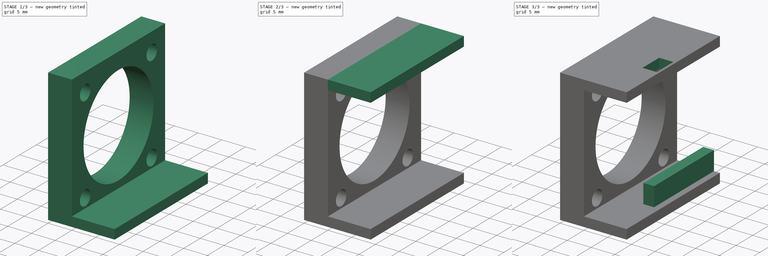
[diagram: build sequence overview — one tinted view per stage of 3, left to right]
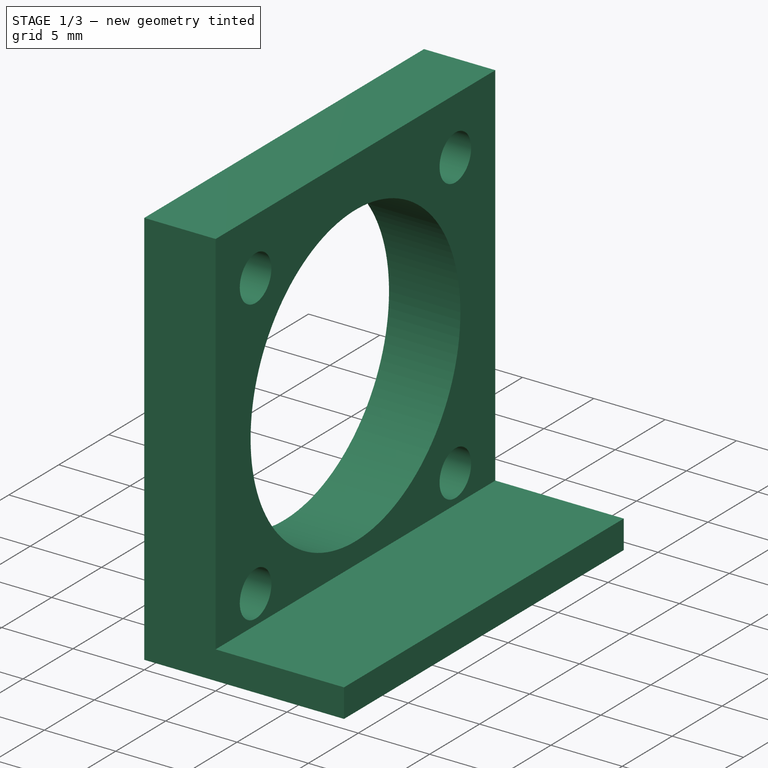
[diagram: stage 1 of 3 — iso view after this stage's code; geometry added in this stage tinted green]
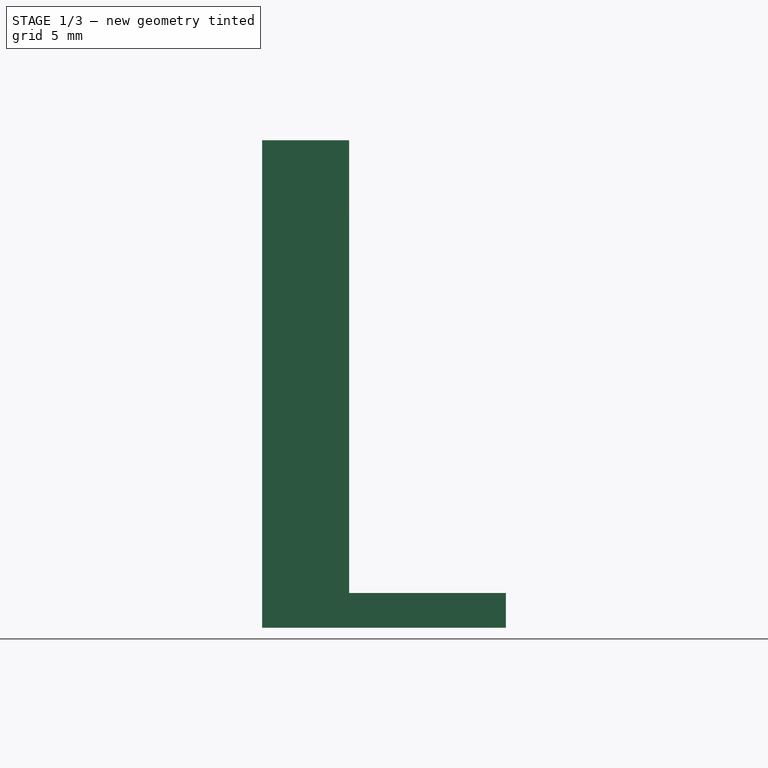
[diagram: stage 1 of 3 — front view after this stage's code; geometry added in this stage tinted green]
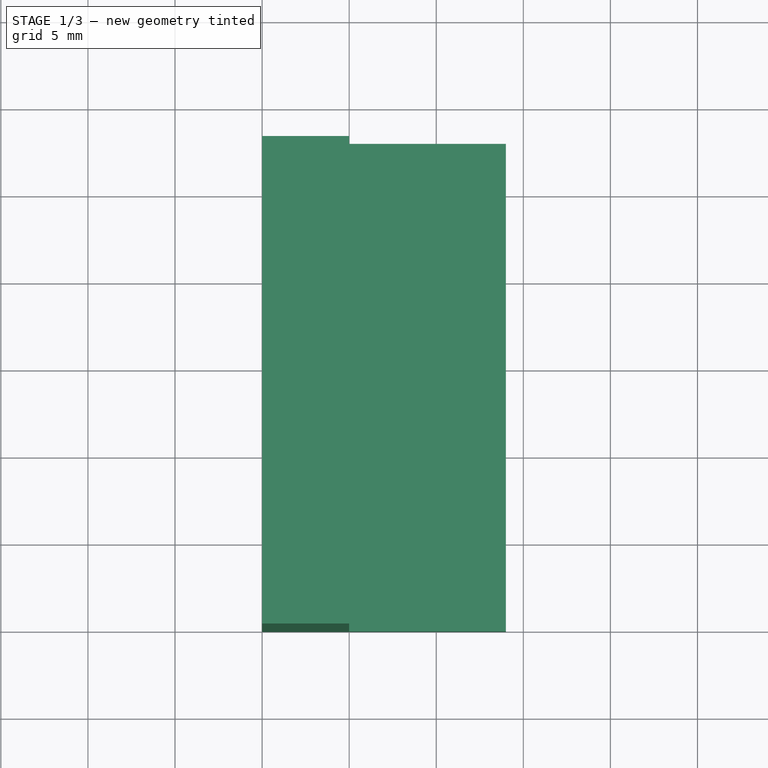
[diagram: stage 1 of 3 — top view after this stage's code; geometry added in this stage tinted green]
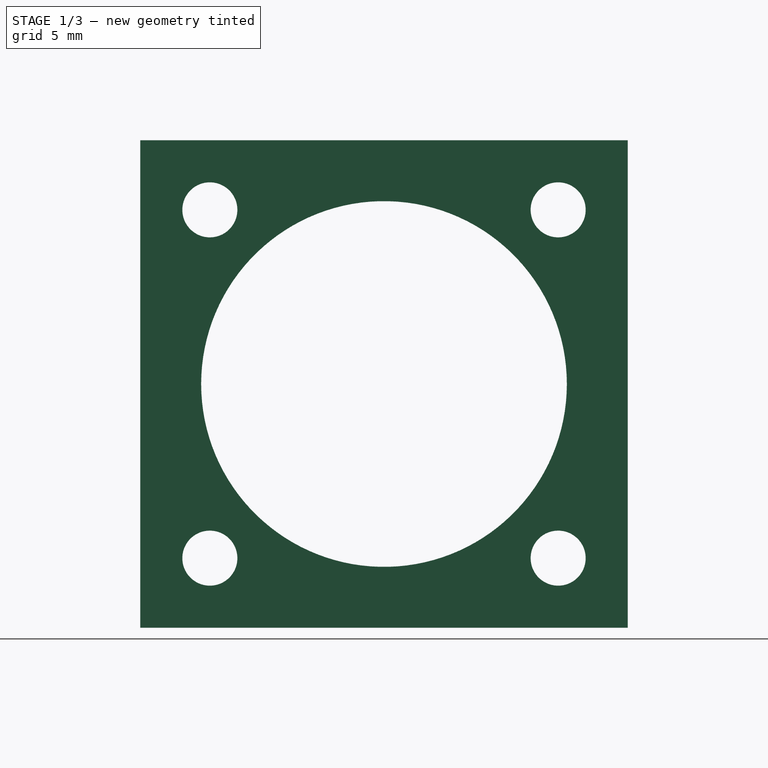
[diagram: stage 1 of 3 — right view after this stage's code; geometry added in this stage tinted green]
FCSTD DOCUMENT  (FreeCAD 1.0R39109 (Git))
Label: cameraBox
License: All rights reserved
LicenseURL: http://en.wikipedia.org/wiki/All_rights_reserved
objects: Sketcher::SketchObject×5, PartDesign::Pad×4, PartDesign::Plane×2, PartDesign::Pocket×1, PartDesign::Body×1
note: 28 computed .brp shape members not serialized (recipe doc carries the construction recipe); baked Part::Feature solids carry a one-line shape summary decoded from their .brp

FEATURE [Sketcher::SketchObject] Sketch  label="Fan Mounting Sketch"
  ArcFitTolerance = 1e-06
  AttachmentSupport = -> [YZ_Plane]
  FullyConstrained = true
  MakeInternals = false
  MapMode = 5
  Placement = pos=(0,0,0) rot=(0.57735,0.57735,0.57735;2.0944rad)
  sketch-geometry (14):
    g0: LineSegment StartX=0 StartY=-3.6e-15 StartZ=0 EndX=28 EndY=-3.6e-15 EndZ=0
    g1: LineSegment StartX=28 StartY=-3.6e-15 StartZ=0 EndX=28 EndY=28 EndZ=0
    g2: LineSegment StartX=28 StartY=28 StartZ=0 EndX=0 EndY=28 EndZ=0
    g3: LineSegment StartX=0 StartY=28 StartZ=0 EndX=0 EndY=-3.6e-15 EndZ=0
    g4: LineSegment [constr] StartX=4 StartY=4 StartZ=0 EndX=24 EndY=4 EndZ=0
    g5: LineSegment [constr] StartX=24 StartY=4 StartZ=0 EndX=24 EndY=24 EndZ=0
    g6: LineSegment [constr] StartX=24 StartY=24 StartZ=0 EndX=4 EndY=24 EndZ=0
    g7: LineSegment [constr] StartX=4 StartY=24 StartZ=0 EndX=4 EndY=4 EndZ=0
    g8: Circle CenterX=4 CenterY=24 CenterZ=0 NormalX=0 NormalY=0 NormalZ=1 AngleXU=0 Radius=1.58
    g9: Circle CenterX=24 CenterY=24 CenterZ=0 NormalX=0 NormalY=0 NormalZ=1 AngleXU=0 Radius=1.58
    g10: Circle CenterX=24 CenterY=4 CenterZ=0 NormalX=0 NormalY=0 NormalZ=1 AngleXU=0 Radius=1.58
    g11: Circle CenterX=4 CenterY=4 CenterZ=0 NormalX=0 NormalY=0 NormalZ=1 AngleXU=0 Radius=1.58
    g12: Circle CenterX=14 CenterY=14 CenterZ=0 NormalX=0 NormalY=0 NormalZ=1 AngleXU=0 Radius=10.5
    g13: GeomPoint X=14 Y=14 Z=0
  constraints (34):
    c: Coincident(g0,g1)
    c: Coincident(g1,g2)
    c: Coincident(g2,g3)
    c: Coincident(g3,g0)
    c: Horizontal(g0)
    c: Horizontal(g2)
    c: Vertical(g1)
    c: Vertical(g3)
    c: Equal(g3,g0)
    c: DistanceX(g2,g2) = 28
    c: Coincident(g4,g5)
    c: Coincident(g5,g6)
    c: Coincident(g6,g7)
    c: Coincident(g7,g4)
    c: Horizontal(g4)
    c: Horizontal(g6)
    c: Vertical(g5)
    c: Vertical(g7)
    c: Equal(g5,g6)
    c: DistanceX(g4,g4) = 20
    c: Coincident(g8,g6)
    c: Coincident(g9,g5)
    c: Coincident(g10,g4)
    c: Coincident(g11,g4)
    c: Equal(g8,g11)
    c: Equal(g10,g11)
    c: Equal(g10,g9)
    c: Diameter(g8) = 3.16
    c: Diameter(g12) = 21
    c: Distance(g13,g-2) = 14
    c: Distance(g13,g-1) = 14
    c: Symmetric(g2,g0,g13)
    c: Symmetric(g5,g4,g13)
    c: Coincident(g12,g13)
FEATURE [PartDesign::Pad] Pad  label="Fan Mount"
  Direction = (1,0,0)
  Length = 5
  Length2 = 10
  Placement = pos=(0,0,0) rot=(1,1,1;2.0944rad)
  Profile = -> Sketch
  ReferenceAxis = -> Sketch [N_Axis]
  Suppressed = false
  Type = 0
FEATURE [Sketcher::SketchObject] Sketch001  label="Bottom Sketch"
  ArcFitTolerance = 1e-06
  AttachmentSupport = -> [XY_Plane]
  FullyConstrained = true
  MakeInternals = false
  MapMode = 5
  sketch-geometry (4):
    g0: LineSegment StartX=0 StartY=0 StartZ=0 EndX=14 EndY=0 EndZ=0
    g1: LineSegment StartX=14 StartY=0 StartZ=0 EndX=14 EndY=28 EndZ=0
    g2: LineSegment StartX=14 StartY=28 StartZ=0 EndX=0 EndY=28 EndZ=0
    g3: LineSegment StartX=0 StartY=28 StartZ=0 EndX=0 EndY=0 EndZ=0
  constraints (11):
    c: Coincident(g0,g1)
    c: Coincident(g1,g2)
    c: Coincident(g2,g3)
    c: Coincident(g3,g0)
    c: Horizontal(g0)
    c: Horizontal(g2)
    c: Vertical(g1)
    c: Vertical(g3)
    c: Coincident(g0,g-1)
    c: DistanceX(g2,g2) = 14
    c: DistanceY(g1,g1) = 28
FEATURE [PartDesign::Pad] Pad001  label="Bottom Pad"
  BaseFeature = -> Pad
  Direction = (0,0,1)
  Length = 2
  Length2 = 10
  Placement = pos=(0,0,0) rot=(1,1,1;2.0944rad)
  Profile = -> Sketch001
  ReferenceAxis = -> Sketch001 [N_Axis]
  Suppressed = false
  Type = 0
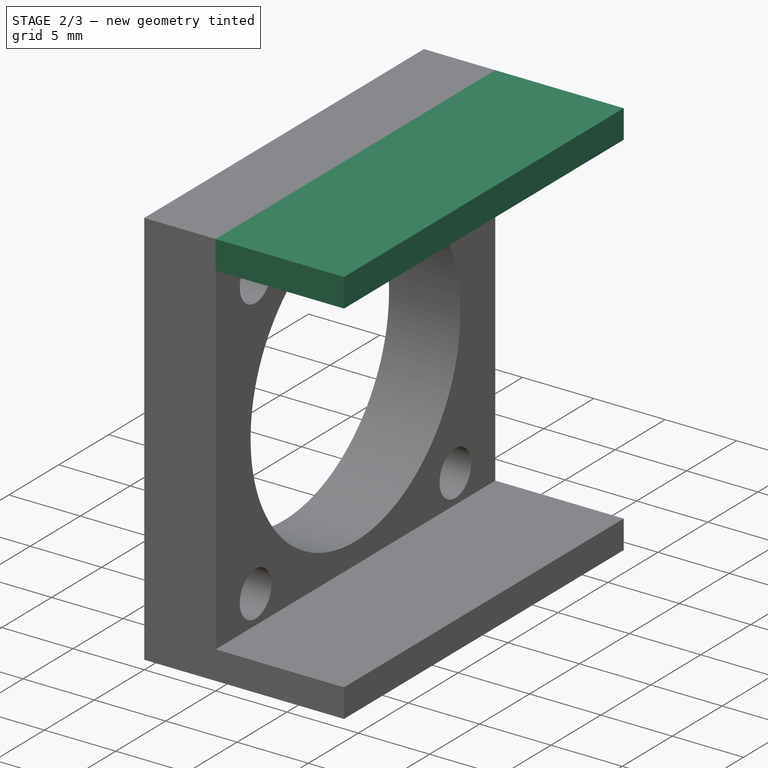
[diagram: stage 2 of 3 — iso view after this stage's code; geometry added in this stage tinted green]
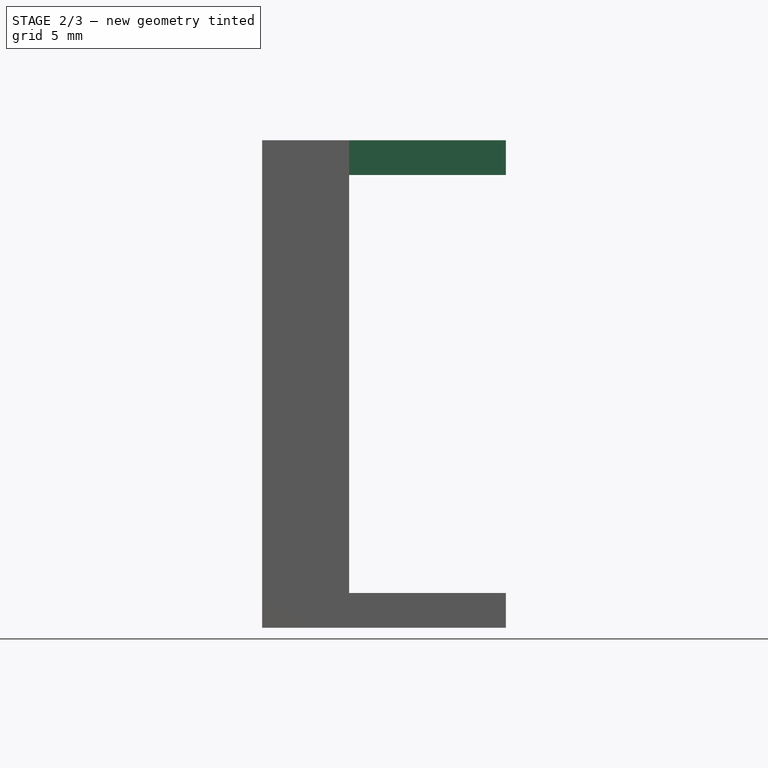
[diagram: stage 2 of 3 — front view after this stage's code; geometry added in this stage tinted green]
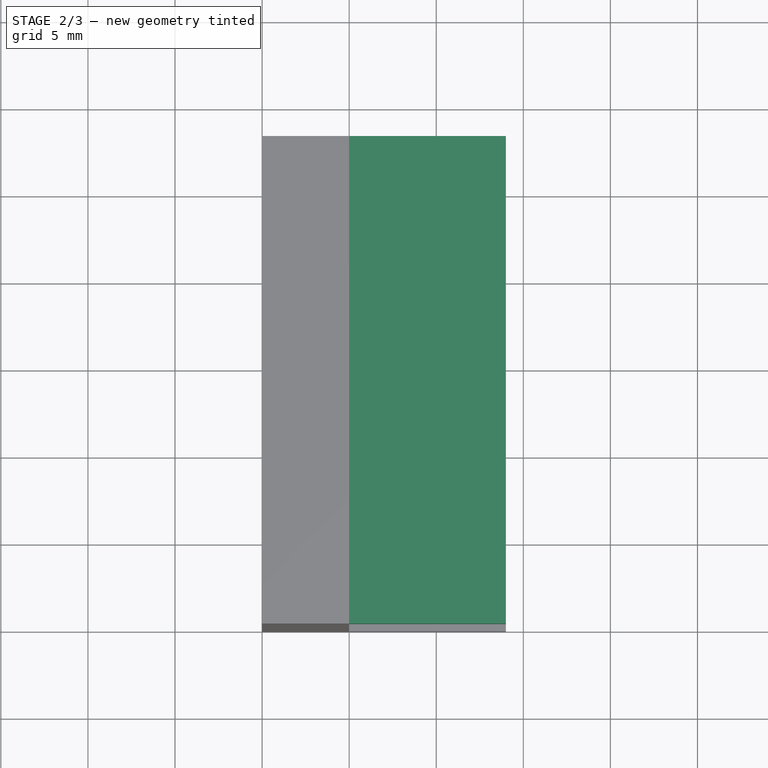
[diagram: stage 2 of 3 — top view after this stage's code; geometry added in this stage tinted green]
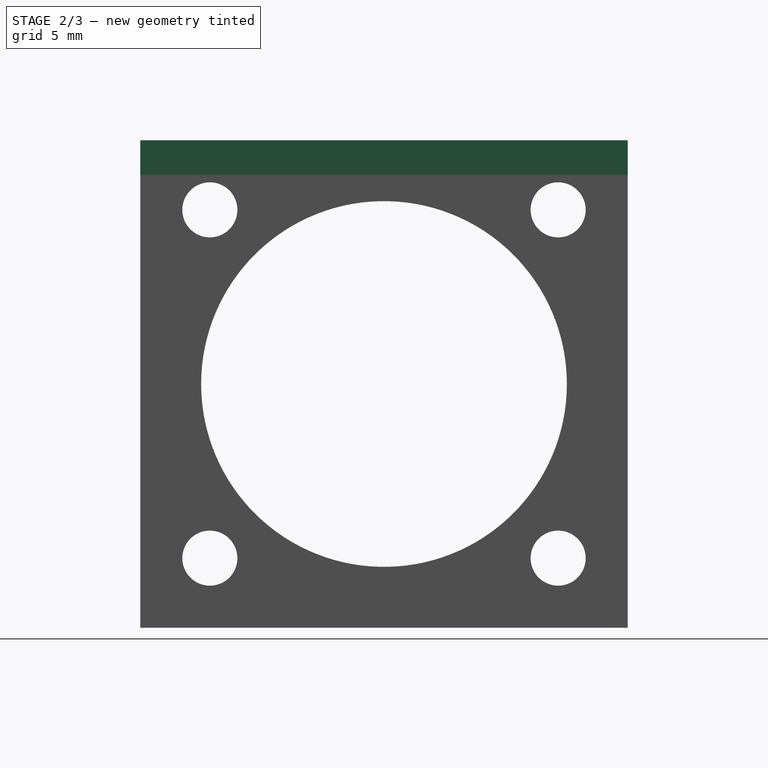
[diagram: stage 2 of 3 — right view after this stage's code; geometry added in this stage tinted green]
FEATURE [PartDesign::Plane] DatumPlane  label="Top Plane"
  AttachmentOffset = pos=(0,0,-28) rot=(0,0,1;0rad)
  AttachmentSupport = -> [Pad001]
  Length = 63.2956
  MapMode = 3
  Placement = pos=(0,0,28) rot=(0.707107,0.707107,0;3.14159rad)
  ResizeMode = 0
  Width = 60.2956
FEATURE [Sketcher::SketchObject] Sketch002  label="Top Sketch"
  ArcFitTolerance = 1e-06
  AttachmentSupport = -> [DatumPlane]
  FullyConstrained = true
  MakeInternals = false
  MapMode = 5
  Placement = pos=(0,0,28) rot=(0.707107,0.707107,0;3.14159rad)
  sketch-geometry (4):
    g0: LineSegment StartX=0 StartY=0 StartZ=0 EndX=28 EndY=0 EndZ=0
    g1: LineSegment StartX=28 StartY=0 StartZ=0 EndX=28 EndY=14 EndZ=0
    g2: LineSegment StartX=28 StartY=14 StartZ=0 EndX=0 EndY=14 EndZ=0
    g3: LineSegment StartX=0 StartY=14 StartZ=0 EndX=0 EndY=0 EndZ=0
  constraints (11):
    c: Coincident(g0,g1)
    c: Coincident(g1,g2)
    c: Coincident(g2,g3)
    c: Coincident(g3,g0)
    c: Horizontal(g0)
    c: Horizontal(g2)
    c: Vertical(g1)
    c: Vertical(g3)
    c: Coincident(g0,g-1)
    c: DistanceY(g3,g3) = 14
    c: DistanceX(g0,g0) = 28
FEATURE [PartDesign::Pad] Pad002  label="Top Pad"
  BaseFeature = -> Pad001
  Direction = (0,0,-1)
  Length = 2
  Length2 = 10
  Placement = pos=(0,0,0) rot=(1,1,1;2.0944rad)
  Profile = -> Sketch002
  ReferenceAxis = -> Sketch002 [N_Axis]
  Suppressed = false
  Type = 0
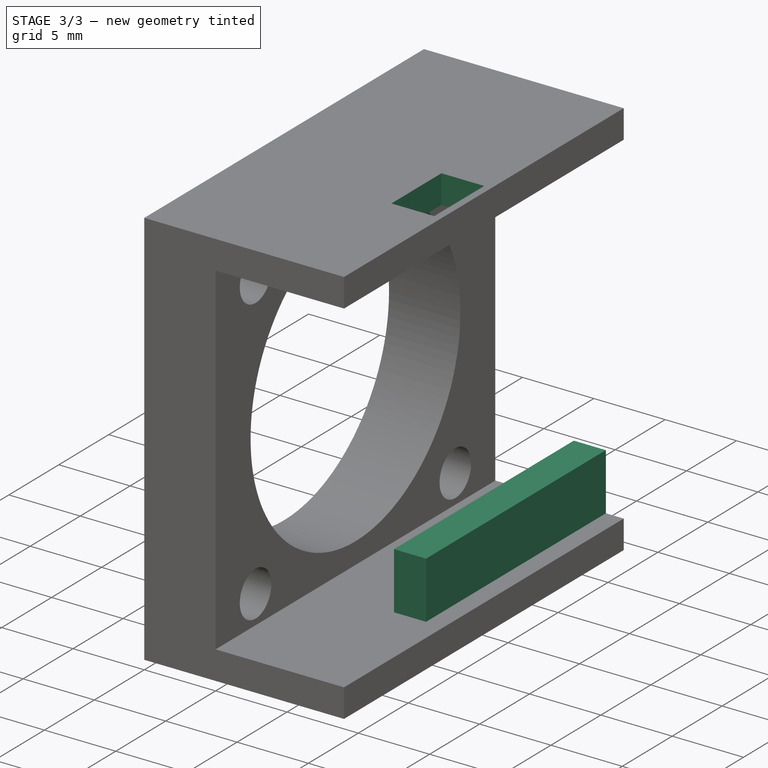
[diagram: stage 3 of 3 — iso view after this stage's code; geometry added in this stage tinted green]
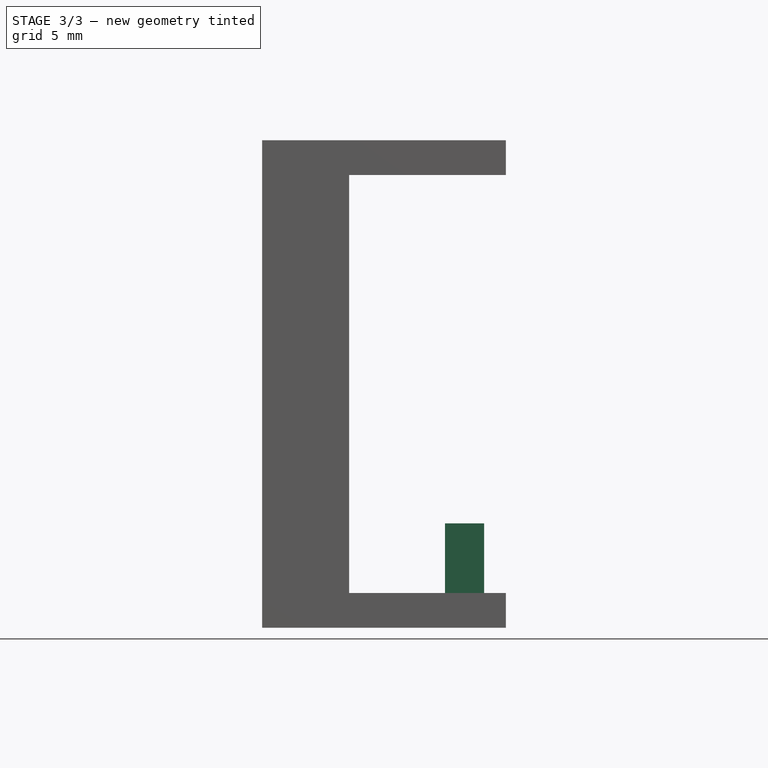
[diagram: stage 3 of 3 — front view after this stage's code; geometry added in this stage tinted green]
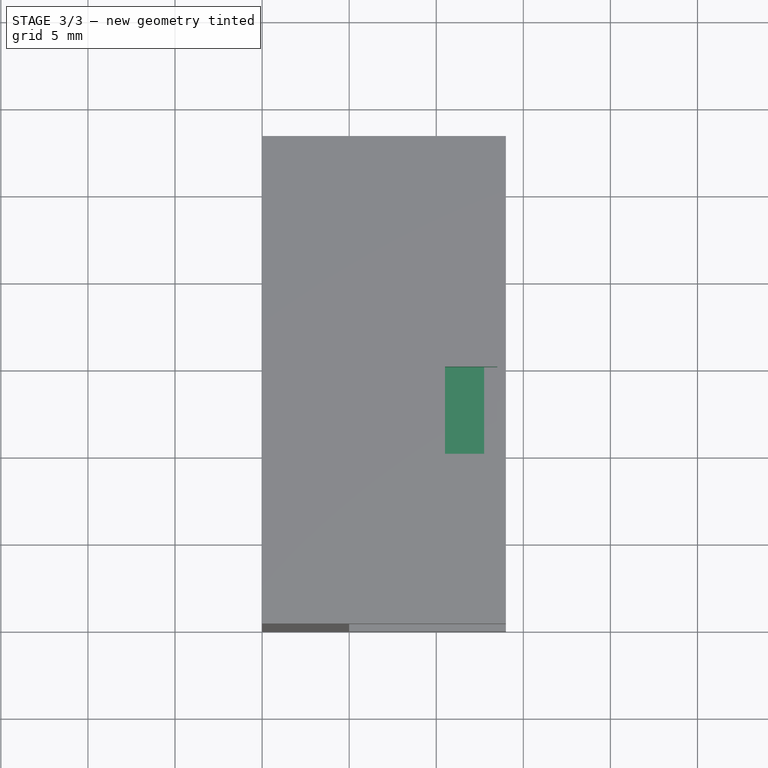
[diagram: stage 3 of 3 — top view after this stage's code; geometry added in this stage tinted green]
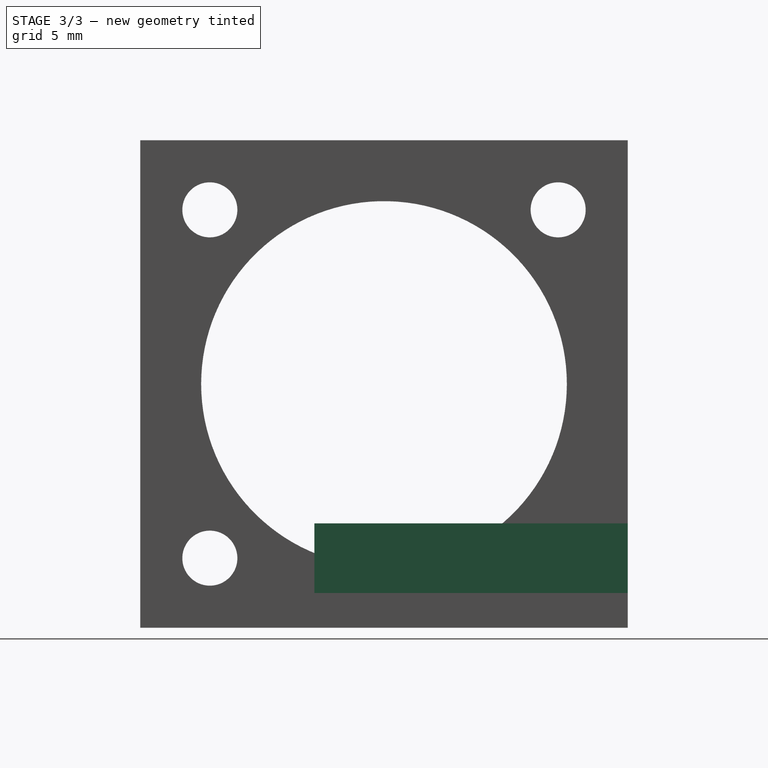
[diagram: stage 3 of 3 — right view after this stage's code; geometry added in this stage tinted green]
FEATURE [PartDesign::Plane] DatumPlane001  label="Spacing Plane"
  AttachmentOffset = pos=(-2,0,10.5) rot=(0,0,1;0rad)
  AttachmentSupport = -> [YZ_Plane]
  Length = 63.6
  MapMode = 2
  Placement = pos=(10.5,-2,0) rot=(0.57735,0.57735,0.57735;2.0944rad)
  ResizeMode = 0
  Width = 63.6
FEATURE [Sketcher::SketchObject] Sketch003  label="Camera Mount Sketch"
  ArcFitTolerance = 1e-06
  AttachmentSupport = -> [DatumPlane001]
  FullyConstrained = true
  MakeInternals = false
  MapMode = 5
  Placement = pos=(10.5,-2,0) rot=(0.57735,0.57735,0.57735;2.0944rad)
  sketch-geometry (4):
    g0: LineSegment StartX=12 StartY=2 StartZ=0 EndX=30 EndY=2 EndZ=0
    g1: LineSegment StartX=30 StartY=2 StartZ=0 EndX=30 EndY=6 EndZ=0
    g2: LineSegment StartX=30 StartY=6 StartZ=0 EndX=12 EndY=6 EndZ=0
    g3: LineSegment StartX=12 StartY=6 StartZ=0 EndX=12 EndY=2 EndZ=0
  constraints (12):
    c: Coincident(g0,g1)
    c: Coincident(g1,g2)
    c: Coincident(g2,g3)
    c: Coincident(g3,g0)
    c: Horizontal(g0)
    c: Horizontal(g2)
    c: Vertical(g1)
    c: Vertical(g3)
    c: DistanceX(g-1,g0) = 12
    c: Distance(g0,g-1) = 2
    c: DistanceY(g1,g1) = 4
    c: DistanceX(g2,g2) = 18
FEATURE [PartDesign::Pad] Pad003
  BaseFeature = -> Pad002
  Direction = (1,0,0)
  Length = 2.25
  Length2 = 10
  Placement = pos=(0,0,0) rot=(1,1,1;2.0944rad)
  Profile = -> Sketch003
  ReferenceAxis = -> Sketch003 [N_Axis]
  Suppressed = false
  Type = 0
FEATURE [Sketcher::SketchObject] Sketch005  label="Button Sketch"
  ArcFitTolerance = 1e-06
  AttachmentSupport = -> [DatumPlane]
  ExternalGeometry = -> [DatumPlane001]
  FullyConstrained = true
  MakeInternals = false
  MapMode = 5
  Placement = pos=(0,0,28) rot=(0.707107,0.707107,0;3.14159rad)
  sketch-geometry (4):
    g0: LineSegment StartX=14.75 StartY=10.5 StartZ=0 EndX=14.75 EndY=13.5 EndZ=0
    g1: LineSegment StartX=14.75 StartY=13.5 StartZ=0 EndX=9.75 EndY=13.5 EndZ=0
    g2: LineSegment StartX=9.75 StartY=13.5 StartZ=0 EndX=9.75 EndY=10.5 EndZ=0
    g3: LineSegment StartX=9.75 StartY=10.5 StartZ=0 EndX=14.75 EndY=10.5 EndZ=0
  constraints (12):
    c: Coincident(g0,g1)
    c: Coincident(g1,g2)
    c: Coincident(g2,g3)
    c: Coincident(g3,g0)
    c: Vertical(g0)
    c: Vertical(g2)
    c: Horizontal(g1)
    c: Horizontal(g3)
    c: DistanceX(g3,g3) = 5
    c: DistanceY(g0,g0) = 3
    c: PointOnObject(g2,g-3)
    c: DistanceX(g-1,g2) = 9.75
FEATURE [PartDesign::Pocket] Pocket
  BaseFeature = -> Pad003
  Direction = (0,0,1)
  Length = 5
  Length2 = 5
  Placement = pos=(0,0,0) rot=(1,1,1;2.0944rad)
  Profile = -> Sketch005
  ReferenceAxis = -> Sketch005 [N_Axis]
  Reversed = true
  Suppressed = false
  Type = 0
FEATURE [PartDesign::Body] Body
  AllowCompound = false
  Group = -> [Sketch,Pad,Sketch001,Pad001,DatumPlane,Sketch002,Pad002,DatumPlane001,Sketch003,Pad003,Sketch005,Pocket]
  Origin = -> Origin
  Tip = -> Pocket
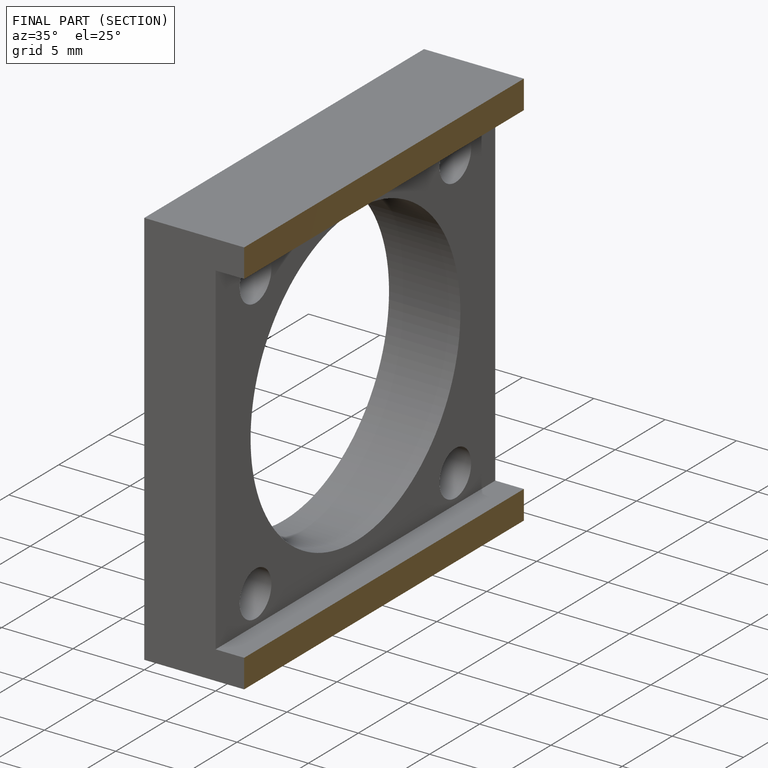
[diagram: finished part — half-section view (interior)]
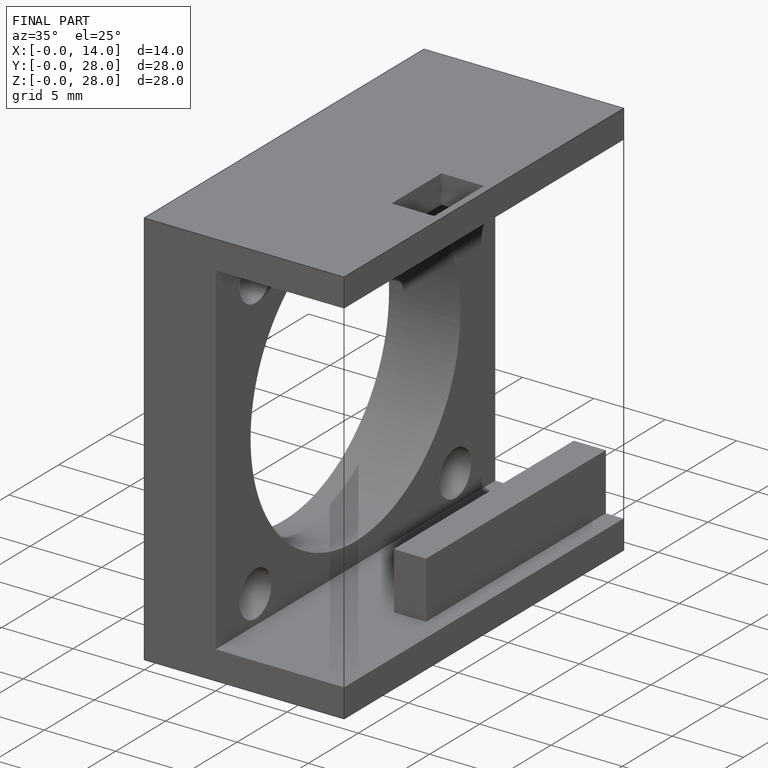
[diagram: finished part — iso view with bounding-box wireframe]
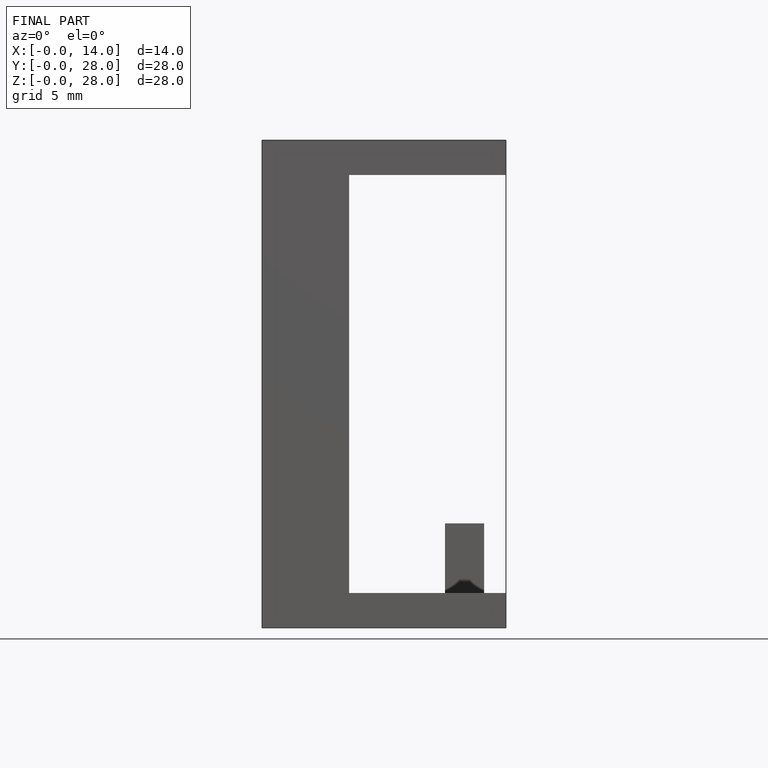
[diagram: finished part — front view with bounding-box wireframe]
